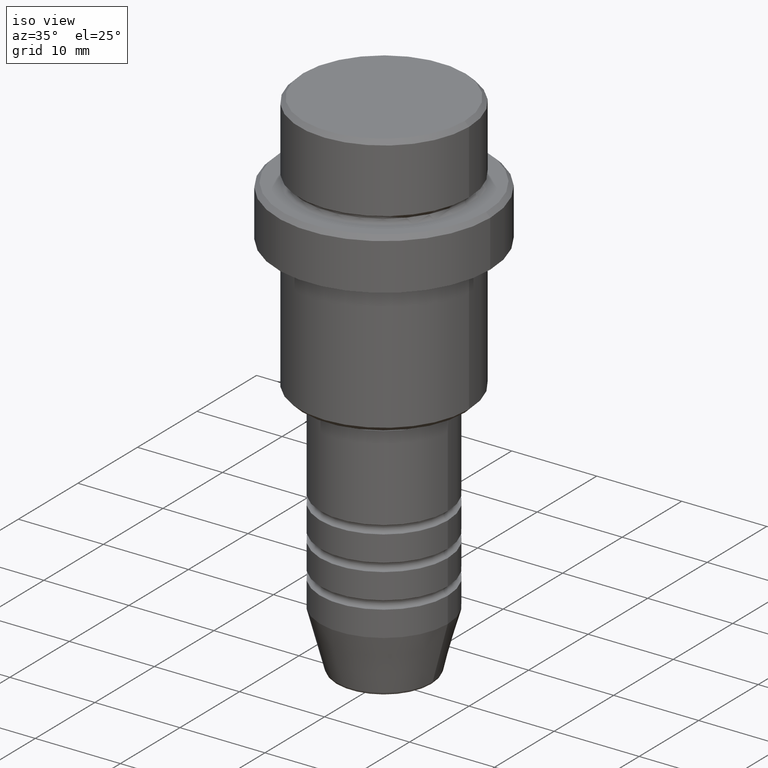
[diagram: clean part render]
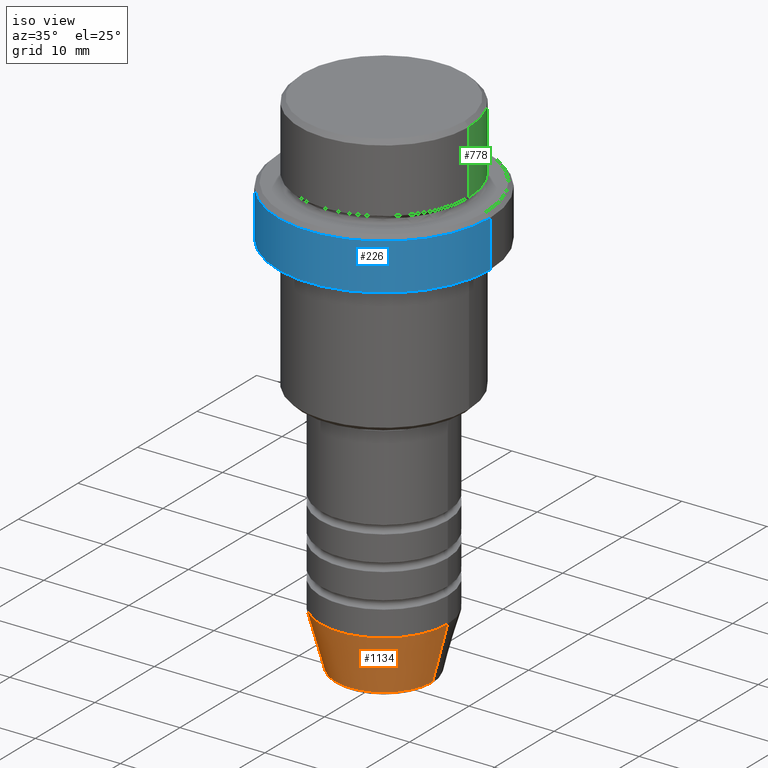
[diagram: same view with three faces highlighted in distinct colors, each labeled with its STEP entity id]
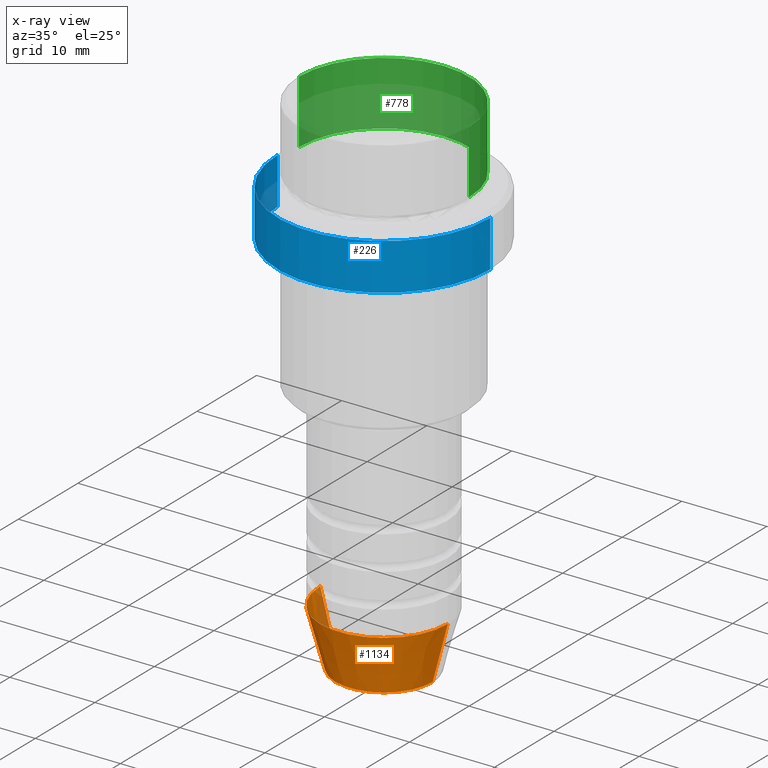
[diagram: x-ray of the same camera — body ghosted, the three highlighted faces saturated]
A machine part, iso view with three faces highlighted in distinct colors.
The next image is the same camera in x-ray (body ghosted, the three faces saturated) — at least one of them is partly hidden behind the body in this view.
Their STEP definitions:

[orange] entity #1134 — the highlighted conical surface has half-angle 15 deg.
#45 = DIRECTION ( 'NONE',  ( 1.000000000000000000, 0.000000000000000000, 0.000000000000000000 ) ) ;
#104 = LINE ( 'NONE', #1080, #821 ) ;
#125 = EDGE_CURVE ( 'NONE', #348, #679, #212, .T. ) ;
#141 = EDGE_CURVE ( 'NONE', #1171, #750, #560, .T. ) ;
#158 = AXIS2_PLACEMENT_3D ( 'NONE', #1074, #652, #315 ) ;
#212 = CIRCLE ( 'NONE', #1013, 5.723655072137192157 ) ;
#315 = DIRECTION ( 'NONE',  ( 1.000000000000000000, 0.000000000000000000, 0.000000000000000000 ) ) ;
#337 = FACE_OUTER_BOUND ( 'NONE', #1255, .T. ) ;
#348 = VERTEX_POINT ( 'NONE', #981 ) ;
#373 = DIRECTION ( 'NONE',  ( -0.000000000000000000, -0.000000000000000000, 1.000000000000000000 ) ) ;
#390 = VECTOR ( 'NONE', #746, 1000.000000000000000 ) ;
#427 = DIRECTION ( 'NONE',  ( 0.2588190451025213501, 0.000000000000000000, 0.9659258262890680902 ) ) ;
#488 = AXIS2_PLACEMENT_3D ( 'NONE', #1169, #1361, #509 ) ;
#509 = DIRECTION ( 'NONE',  ( 1.000000000000000000, 0.000000000000000000, 0.000000000000000000 ) ) ;
#536 = EDGE_CURVE ( 'NONE', #348, #1171, #633, .T. ) ;
#560 = CIRCLE ( 'NONE', #488, 7.500000000000000000 ) ;
#633 = LINE ( 'NONE', #1380, #390 ) ;
#652 = DIRECTION ( 'NONE',  ( -0.000000000000000000, -0.000000000000000000, 1.000000000000000000 ) ) ;
#655 = CARTESIAN_POINT ( 'NONE',  ( 7.500000000000000000, 0.000000000000000000, -54.00000000000000000 ) ) ;
#679 = VERTEX_POINT ( 'NONE', #979 ) ;
#729 = CARTESIAN_POINT ( 'NONE',  ( 0.000000000000000000, 0.000000000000000000, -60.62940952255125637 ) ) ;
#746 = DIRECTION ( 'NONE',  ( -0.2588190451025213501, 3.169619151431772337E-17, 0.9659258262890680902 ) ) ;
#750 = VERTEX_POINT ( 'NONE', #655 ) ;
#821 = VECTOR ( 'NONE', #427, 1000.000000000000000 ) ;
#963 = ORIENTED_EDGE ( 'NONE', *, *, #125, .T. ) ;
#979 = CARTESIAN_POINT ( 'NONE',  ( 5.723655072137192157, 0.000000000000000000, -60.62940952255125637 ) ) ;
#981 = CARTESIAN_POINT ( 'NONE',  ( -5.723655072137192157, 8.097153428560737887E-16, -60.62940952255125637 ) ) ;
#1000 = CONICAL_SURFACE ( 'NONE', #158, 7.500000000000000000, 0.2617993877991500740 ) ;
#1001 = ORIENTED_EDGE ( 'NONE', *, *, #536, .F. ) ;
#1013 = AXIS2_PLACEMENT_3D ( 'NONE', #729, #373, #45 ) ;
#1074 = CARTESIAN_POINT ( 'NONE',  ( 0.000000000000000000, 0.000000000000000000, -54.00000000000000000 ) ) ;
#1080 = CARTESIAN_POINT ( 'NONE',  ( 7.500000000000000000, 0.000000000000000000, -54.00000000000000000 ) ) ;
#1099 = EDGE_CURVE ( 'NONE', #679, #750, #104, .T. ) ;
#1134 = ADVANCED_FACE ( 'NONE', ( #337 ), #1000, .T. ) ;
#1169 = CARTESIAN_POINT ( 'NONE',  ( 0.000000000000000000, 0.000000000000000000, -54.00000000000000000 ) ) ;
#1171 = VERTEX_POINT ( 'NONE', #1219 ) ;
#1219 = CARTESIAN_POINT ( 'NONE',  ( -7.500000000000000000, 9.184850993605147944E-16, -54.00000000000000000 ) ) ;
#1255 = EDGE_LOOP ( 'NONE', ( #1001, #963, #1356, #1263 ) ) ;
#1263 = ORIENTED_EDGE ( 'NONE', *, *, #141, .F. ) ;
#1356 = ORIENTED_EDGE ( 'NONE', *, *, #1099, .T. ) ;
#1361 = DIRECTION ( 'NONE',  ( -0.000000000000000000, -0.000000000000000000, 1.000000000000000000 ) ) ;
#1380 = CARTESIAN_POINT ( 'NONE',  ( -7.500000000000000000, 9.184850993605147944E-16, -54.00000000000000000 ) ) ;

[blue] entity #226 — the highlighted cylindrical surface (partial cylindrical patch) has radius 12.5 mm, axis along (-0, -0, 1).
#101 = CIRCLE ( 'NONE', #1178, 12.50000000000000000 ) ;
#109 = ORIENTED_EDGE ( 'NONE', *, *, #115, .T. ) ;
#110 = CARTESIAN_POINT ( 'NONE',  ( -12.50000000000000000, 1.530808498934191521E-15, 0.000000000000000000 ) ) ;
#115 = EDGE_CURVE ( 'NONE', #1300, #1093, #101, .T. ) ;
#119 = CARTESIAN_POINT ( 'NONE',  ( -12.50000000000000000, 1.530808498934191521E-15, -9.499999999999998224 ) ) ;
#129 = VECTOR ( 'NONE', #1306, 1000.000000000000000 ) ;
#134 = CARTESIAN_POINT ( 'NONE',  ( -12.50000000000000000, 1.530808498934191521E-15, -15.00000000000000000 ) ) ;
#147 = EDGE_CURVE ( 'NONE', #307, #1222, #1277, .T. ) ;
#164 = DIRECTION ( 'NONE',  ( -0.000000000000000000, -0.000000000000000000, 1.000000000000000000 ) ) ;
#170 = VECTOR ( 'NONE', #1395, 1000.000000000000000 ) ;
#195 = LINE ( 'NONE', #110, #170 ) ;
#204 = CARTESIAN_POINT ( 'NONE',  ( 12.50000000000000000, 0.000000000000000000, -9.499999999999998224 ) ) ;
#214 = AXIS2_PLACEMENT_3D ( 'NONE', #1184, #221, #412 ) ;
#221 = DIRECTION ( 'NONE',  ( -0.000000000000000000, -0.000000000000000000, 1.000000000000000000 ) ) ;
#226 = ADVANCED_FACE ( 'NONE', ( #1195 ), #1076, .T. ) ;
#233 = EDGE_CURVE ( 'NONE', #1093, #307, #747, .T. ) ;
#244 = EDGE_CURVE ( 'NONE', #1300, #1222, #195, .T. ) ;
#307 = VERTEX_POINT ( 'NONE', #204 ) ;
#308 = ORIENTED_EDGE ( 'NONE', *, *, #147, .T. ) ;
#396 = CARTESIAN_POINT ( 'NONE',  ( 0.000000000000000000, 0.000000000000000000, -9.499999999999998224 ) ) ;
#412 = DIRECTION ( 'NONE',  ( 1.000000000000000000, 0.000000000000000000, 0.000000000000000000 ) ) ;
#502 = DIRECTION ( 'NONE',  ( 1.000000000000000000, 0.000000000000000000, 0.000000000000000000 ) ) ;
#506 = ORIENTED_EDGE ( 'NONE', *, *, #244, .F. ) ;
#602 = DIRECTION ( 'NONE',  ( 0.000000000000000000, 0.000000000000000000, -1.000000000000000000 ) ) ;
#616 = ORIENTED_EDGE ( 'NONE', *, *, #233, .T. ) ;
#747 = LINE ( 'NONE', #855, #129 ) ;
#840 = EDGE_LOOP ( 'NONE', ( #506, #109, #616, #308 ) ) ;
#855 = CARTESIAN_POINT ( 'NONE',  ( 12.50000000000000000, 0.000000000000000000, 0.000000000000000000 ) ) ;
#904 = AXIS2_PLACEMENT_3D ( 'NONE', #396, #602, #945 ) ;
#945 = DIRECTION ( 'NONE',  ( 1.000000000000000000, 0.000000000000000000, 0.000000000000000000 ) ) ;
#1041 = CARTESIAN_POINT ( 'NONE',  ( 0.000000000000000000, 0.000000000000000000, -15.00000000000000000 ) ) ;
#1076 = CYLINDRICAL_SURFACE ( 'NONE', #214, 12.50000000000000000 ) ;
#1093 = VERTEX_POINT ( 'NONE', #1094 ) ;
#1094 = CARTESIAN_POINT ( 'NONE',  ( 12.50000000000000000, 0.000000000000000000, -15.00000000000000000 ) ) ;
#1178 = AXIS2_PLACEMENT_3D ( 'NONE', #1041, #164, #502 ) ;
#1184 = CARTESIAN_POINT ( 'NONE',  ( 0.000000000000000000, 0.000000000000000000, 0.000000000000000000 ) ) ;
#1195 = FACE_OUTER_BOUND ( 'NONE', #840, .T. ) ;
#1222 = VERTEX_POINT ( 'NONE', #119 ) ;
#1277 = CIRCLE ( 'NONE', #904, 12.50000000000000000 ) ;
#1300 = VERTEX_POINT ( 'NONE', #134 ) ;
#1306 = DIRECTION ( 'NONE',  ( -0.000000000000000000, -0.000000000000000000, 1.000000000000000000 ) ) ;
#1395 = DIRECTION ( 'NONE',  ( -0.000000000000000000, -0.000000000000000000, 1.000000000000000000 ) ) ;

[green] entity #778 — the highlighted cylindrical surface (partial cylindrical patch) has radius 10 mm, axis along (-0, -0, 1).
#22 = EDGE_CURVE ( 'NONE', #547, #1073, #1344, .T. ) ;
#42 = CARTESIAN_POINT ( 'NONE',  ( 9.999999999999998224, 0.000000000000000000, 0.000000000000000000 ) ) ;
#47 = DIRECTION ( 'NONE',  ( -0.000000000000000000, -0.000000000000000000, 1.000000000000000000 ) ) ;
#123 = CARTESIAN_POINT ( 'NONE',  ( 9.999999999999998224, 0.000000000000000000, -0.5000000000000038858 ) ) ;
#130 = DIRECTION ( 'NONE',  ( 1.000000000000000000, 0.000000000000000000, 0.000000000000000000 ) ) ;
#178 = LINE ( 'NONE', #1045, #1027 ) ;
#199 = DIRECTION ( 'NONE',  ( -0.000000000000000000, -0.000000000000000000, 1.000000000000000000 ) ) ;
#261 = EDGE_CURVE ( 'NONE', #1329, #407, #515, .T. ) ;
#314 = ORIENTED_EDGE ( 'NONE', *, *, #261, .T. ) ;
#399 = CARTESIAN_POINT ( 'NONE',  ( 0.000000000000000000, 0.000000000000000000, -7.999999999999998224 ) ) ;
#400 = ORIENTED_EDGE ( 'NONE', *, *, #612, .F. ) ;
#407 = VERTEX_POINT ( 'NONE', #123 ) ;
#424 = CARTESIAN_POINT ( 'NONE',  ( 0.000000000000000000, 0.000000000000000000, -0.5000000000000038858 ) ) ;
#428 = FACE_OUTER_BOUND ( 'NONE', #1378, .T. ) ;
#435 = DIRECTION ( 'NONE',  ( 0.000000000000000000, 0.000000000000000000, -1.000000000000000000 ) ) ;
#457 = CARTESIAN_POINT ( 'NONE',  ( -9.999999999999998224, 1.224646799147353059E-15, -0.5000000000000038858 ) ) ;
#513 = CARTESIAN_POINT ( 'NONE',  ( -9.999999999999998224, 1.224646799147353059E-15, -7.999999999999998224 ) ) ;
#515 = CIRCLE ( 'NONE', #1302, 9.999999999999998224 ) ;
#547 = VERTEX_POINT ( 'NONE', #1075 ) ;
#612 = EDGE_CURVE ( 'NONE', #547, #407, #692, .T. ) ;
#692 = LINE ( 'NONE', #42, #1341 ) ;
#757 = ORIENTED_EDGE ( 'NONE', *, *, #22, .T. ) ;
#778 = ADVANCED_FACE ( 'NONE', ( #428 ), #986, .T. ) ;
#888 = DIRECTION ( 'NONE',  ( 1.000000000000000000, 0.000000000000000000, 0.000000000000000000 ) ) ;
#986 = CYLINDRICAL_SURFACE ( 'NONE', #1078, 9.999999999999998224 ) ;
#989 = ORIENTED_EDGE ( 'NONE', *, *, #1024, .T. ) ;
#1024 = EDGE_CURVE ( 'NONE', #1073, #1329, #178, .T. ) ;
#1027 = VECTOR ( 'NONE', #199, 1000.000000000000000 ) ;
#1045 = CARTESIAN_POINT ( 'NONE',  ( -9.999999999999998224, 1.224646799147353059E-15, 0.000000000000000000 ) ) ;
#1067 = DIRECTION ( 'NONE',  ( -0.000000000000000000, -0.000000000000000000, 1.000000000000000000 ) ) ;
#1073 = VERTEX_POINT ( 'NONE', #513 ) ;
#1075 = CARTESIAN_POINT ( 'NONE',  ( 9.999999999999998224, 0.000000000000000000, -7.999999999999998224 ) ) ;
#1078 = AXIS2_PLACEMENT_3D ( 'NONE', #1417, #1286, #130 ) ;
#1265 = DIRECTION ( 'NONE',  ( 1.000000000000000000, 0.000000000000000000, 0.000000000000000000 ) ) ;
#1286 = DIRECTION ( 'NONE',  ( -0.000000000000000000, -0.000000000000000000, 1.000000000000000000 ) ) ;
#1302 = AXIS2_PLACEMENT_3D ( 'NONE', #424, #435, #888 ) ;
#1324 = AXIS2_PLACEMENT_3D ( 'NONE', #399, #47, #1265 ) ;
#1329 = VERTEX_POINT ( 'NONE', #457 ) ;
#1341 = VECTOR ( 'NONE', #1067, 1000.000000000000000 ) ;
#1344 = CIRCLE ( 'NONE', #1324, 9.999999999999998224 ) ;
#1378 = EDGE_LOOP ( 'NONE', ( #757, #989, #314, #400 ) ) ;
#1417 = CARTESIAN_POINT ( 'NONE',  ( 0.000000000000000000, 0.000000000000000000, 0.000000000000000000 ) ) ;